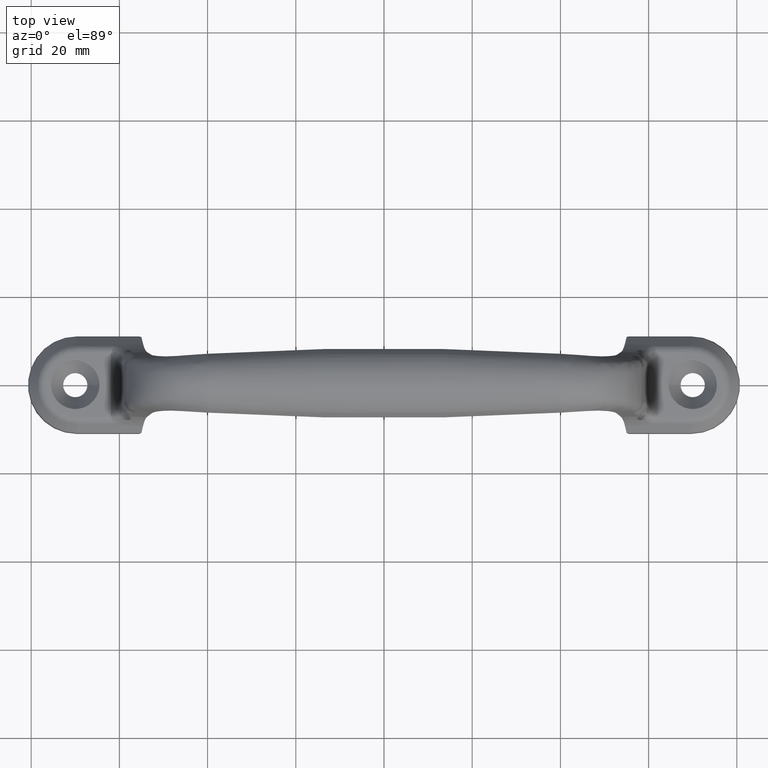
[diagram: clean part render]
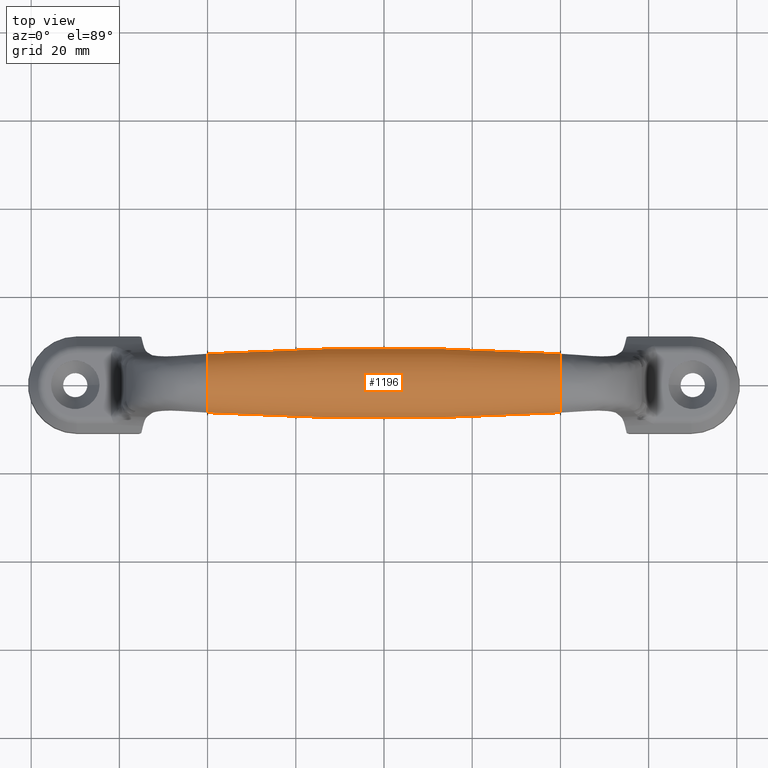
[diagram: same view with one face highlighted and labeled with its STEP entity id]
A machine part, top view. The second image highlights one B-rep face of the part: STEP entity #1196.
In plain terms, the highlighted face is a freeform B-spline surface patch.
Its self-contained STEP definition (entity closure, byte-faithful):
#181=FACE_OUTER_BOUND('',#254,.T.);
#254=EDGE_LOOP('',(#803,#804,#805,#806));
#332=B_SPLINE_CURVE_WITH_KNOTS('',3,(#1501,#1502,#1503,#1504,#1505,#1506),
 .UNSPECIFIED.,.F.,.F.,(4,2,4),(0.,0.500017514202834,1.),.UNSPECIFIED.);
#349=B_SPLINE_CURVE_WITH_KNOTS('',3,(#2258,#2259,#2260,#2261,#2262,#2263),
 .UNSPECIFIED.,.F.,.F.,(4,2,4),(0.,0.500017514202834,1.),.UNSPECIFIED.);
#350=B_SPLINE_CURVE_WITH_KNOTS('',3,(#2504,#2505,#2506,#2507,#2508,#2509,
#2510,#2511,#2512,#2513,#2514,#2515,#2516,#2517,#2518,#2519,#2520,#2521,
#2522,#2523,#2524,#2525,#2526,#2527,#2528,#2529,#2530,#2531,#2532,#2533,
#2534,#2535,#2536,#2537,#2538,#2539,#2540,#2541,#2542,#2543,#2544,#2545,
#2546,#2547,#2548,#2549,#2550,#2551,#2552,#2553,#2554,#2555,#2556,#2557,
#2558,#2559,#2560,#2561,#2562,#2563,#2564,#2565,#2566,#2567,#2568,#2569,
#2570,#2571,#2572,#2573,#2574,#2575,#2576,#2577,#2578,#2579,#2580,#2581,
#2582,#2583,#2584,#2585,#2586,#2587,#2588,#2589,#2590,#2591,#2592,#2593,
#2594),.UNSPECIFIED.,.F.,.F.,(4,3,3,3,3,3,3,3,3,3,3,3,3,3,3,3,3,3,3,3,3,
3,3,3,3,3,3,3,3,3,4),(-1.44370021398789,-1.26466342048277,-1.25451719783154,
-1.2421059356418,-1.17421645538692,-1.15912800481853,-1.15153691434943,
-1.08376949029108,-1.06713364534011,-1.06342626409933,-0.98785778160469,
-0.967176529007807,-0.910069343056486,-0.870912515835616,-0.752957486636548,
-0.721981629907689,-0.691957731062429,-0.573735026135915,-0.535103499457519,
-0.477364212774784,-0.457442208182294,-0.381017529608391,-0.378239689340944,
-0.360193769524304,-0.293751732951284,-0.285212509527465,-0.269746804428457,
-0.202862300105507,-0.189697550767016,-0.17929983933261,-0.000263258753689663),
 .UNSPECIFIED.);
#351=B_SPLINE_CURVE_WITH_KNOTS('',3,(#2595,#2596,#2597,#2598,#2599,#2600,
#2601,#2602,#2603,#2604,#2605,#2606,#2607,#2608,#2609,#2610,#2611,#2612,
#2613,#2614,#2615,#2616,#2617,#2618,#2619,#2620,#2621,#2622,#2623,#2624,
#2625,#2626,#2627,#2628,#2629,#2630,#2631,#2632,#2633,#2634,#2635,#2636,
#2637,#2638,#2639,#2640,#2641,#2642,#2643,#2644,#2645,#2646,#2647,#2648,
#2649,#2650,#2651,#2652,#2653,#2654,#2655,#2656,#2657,#2658,#2659,#2660,
#2661,#2662,#2663,#2664,#2665,#2666,#2667,#2668,#2669,#2670,#2671,#2672,
#2673,#2674,#2675,#2676,#2677,#2678,#2679,#2680,#2681,#2682,#2683,#2684,
#2685),.UNSPECIFIED.,.F.,.F.,(4,3,3,3,3,3,3,3,3,3,3,3,3,3,3,3,3,3,3,3,3,
3,3,3,3,3,3,3,3,3,4),(-1.45244274154689,-1.27233968254572,-1.26188003441184,
-1.24863686578575,-1.18135394634332,-1.16579611570929,-1.15720602615803,
-1.09036821014091,-1.07221479506251,-1.06942040785981,-0.99254048561245,
-0.972499810366414,-0.91441658445537,-0.875554938940432,-0.756628009416818,
-0.726425265331289,-0.695264892774965,-0.576607233459581,-0.5372171583115,
-0.479769798405919,-0.458965352495309,-0.38294672648406,-0.379217261253053,
-0.362482320521668,-0.294311222000496,-0.286674913206958,-0.271496584319263,
-0.203202702541767,-0.190717509408556,-0.180510848116858,-0.000407574921135646),
 .UNSPECIFIED.);
#460=VERTEX_POINT('',#1491);
#462=VERTEX_POINT('',#1500);
#472=VERTEX_POINT('',#2218);
#473=VERTEX_POINT('',#2238);
#588=EDGE_CURVE('',#460,#462,#332,.T.);
#605=EDGE_CURVE('',#472,#473,#349,.T.);
#606=EDGE_CURVE('',#472,#460,#350,.T.);
#607=EDGE_CURVE('',#462,#473,#351,.T.);
#803=ORIENTED_EDGE('',*,*,#606,.F.);
#804=ORIENTED_EDGE('',*,*,#605,.T.);
#805=ORIENTED_EDGE('',*,*,#607,.F.);
#806=ORIENTED_EDGE('',*,*,#588,.F.);
#1169=B_SPLINE_SURFACE_WITH_KNOTS('',3,3,((#2264,#2265,#2266,#2267),(#2268,
#2269,#2270,#2271),(#2272,#2273,#2274,#2275),(#2276,#2277,#2278,#2279),
(#2280,#2281,#2282,#2283),(#2284,#2285,#2286,#2287),(#2288,#2289,#2290,
#2291),(#2292,#2293,#2294,#2295),(#2296,#2297,#2298,#2299),(#2300,#2301,
#2302,#2303),(#2304,#2305,#2306,#2307),(#2308,#2309,#2310,#2311),(#2312,
#2313,#2314,#2315),(#2316,#2317,#2318,#2319),(#2320,#2321,#2322,#2323),
(#2324,#2325,#2326,#2327),(#2328,#2329,#2330,#2331),(#2332,#2333,#2334,
#2335),(#2336,#2337,#2338,#2339),(#2340,#2341,#2342,#2343),(#2344,#2345,
#2346,#2347),(#2348,#2349,#2350,#2351),(#2352,#2353,#2354,#2355),(#2356,
#2357,#2358,#2359),(#2360,#2361,#2362,#2363),(#2364,#2365,#2366,#2367),
(#2368,#2369,#2370,#2371),(#2372,#2373,#2374,#2375),(#2376,#2377,#2378,
#2379),(#2380,#2381,#2382,#2383),(#2384,#2385,#2386,#2387),(#2388,#2389,
#2390,#2391),(#2392,#2393,#2394,#2395),(#2396,#2397,#2398,#2399),(#2400,
#2401,#2402,#2403),(#2404,#2405,#2406,#2407),(#2408,#2409,#2410,#2411),
(#2412,#2413,#2414,#2415),(#2416,#2417,#2418,#2419),(#2420,#2421,#2422,
#2423),(#2424,#2425,#2426,#2427),(#2428,#2429,#2430,#2431),(#2432,#2433,
#2434,#2435),(#2436,#2437,#2438,#2439),(#2440,#2441,#2442,#2443),(#2444,
#2445,#2446,#2447),(#2448,#2449,#2450,#2451),(#2452,#2453,#2454,#2455),
(#2456,#2457,#2458,#2459),(#2460,#2461,#2462,#2463),(#2464,#2465,#2466,
#2467),(#2468,#2469,#2470,#2471),(#2472,#2473,#2474,#2475),(#2476,#2477,
#2478,#2479),(#2480,#2481,#2482,#2483),(#2484,#2485,#2486,#2487),(#2488,
#2489,#2490,#2491),(#2492,#2493,#2494,#2495),(#2496,#2497,#2498,#2499),
(#2500,#2501,#2502,#2503)),.UNSPECIFIED.,.F.,.F.,.F.,(4,2,2,2,2,2,2,2,2,
2,2,2,2,2,1,2,1,2,2,2,2,2,2,2,2,2,2,2,2,2,4),(4,4),(0.,0.124035062879535,
0.13106427369088,0.139662683302559,0.186695898025724,0.197149039407255,
0.202408077872063,0.249356733171912,0.260881895314007,0.263450335333041,
0.315803492996503,0.330131276778045,0.369694616031789,0.396822109947529,
0.478540281822884,0.500000073756667,0.52080035792314,0.602703973108975,
0.629467543584506,0.669468796478413,0.683270580144993,0.736216902668309,
0.738141365151672,0.750643414341421,0.796673853240805,0.802589749596967,
0.81330424948761,0.859641226021579,0.868761644679805,0.875965084633799,
1.),(0.,1.),.UNSPECIFIED.);
#1196=ADVANCED_FACE('',(#181),#1169,.F.);
#1491=CARTESIAN_POINT('',(-40.000000015354,66.7435429460592,26.0890724851359));
#1500=CARTESIAN_POINT('',(40.000000012315,66.7435429464267,26.0890724852704));
#1501=CARTESIAN_POINT('Ctrl Pts',(-40.,66.7435429479518,26.0890724856966));
#1502=CARTESIAN_POINT('Ctrl Pts',(-26.6671337340873,67.5546155565217,26.1008781295715));
#1503=CARTESIAN_POINT('Ctrl Pts',(-13.3338003953995,67.9601376555159,26.1067807447445));
#1504=CARTESIAN_POINT('Ctrl Pts',(13.3328663367058,67.9600808363431,26.1067799177155));
#1505=CARTESIAN_POINT('Ctrl Pts',(26.6661996646847,67.5545587373466,26.1008773025504));
#1506=CARTESIAN_POINT('Ctrl Pts',(40.,66.7435429479448,26.0890724857202));
#2218=CARTESIAN_POINT('',(-40.0000000328284,53.391963930679,26.0888706088555));
#2238=CARTESIAN_POINT('',(40.0000000001041,53.3919639267432,26.0888706103815));
#2258=CARTESIAN_POINT('Ctrl Pts',(-40.,53.3919639266323,26.0888706100543));
#2259=CARTESIAN_POINT('Ctrl Pts',(-26.6671337375446,52.5809279262415,26.1008022521448));
#2260=CARTESIAN_POINT('Ctrl Pts',(-13.3338004005855,52.1754241307033,26.1067678642444));
#2261=CARTESIAN_POINT('Ctrl Pts',(13.3328663315201,52.1754809473419,26.1067670284913));
#2262=CARTESIAN_POINT('Ctrl Pts',(26.6661996612276,52.5809847429128,26.100801416502));
#2263=CARTESIAN_POINT('Ctrl Pts',(40.,53.3919639267303,26.0888706103853));
#2264=CARTESIAN_POINT('Ctrl Pts',(-40.,53.3919639266323,26.0888706100543));
#2265=CARTESIAN_POINT('Ctrl Pts',(-13.3352015004681,51.7699487424566,26.1127330583718));
#2266=CARTESIAN_POINT('Ctrl Pts',(13.3314651661985,51.7699487424893,26.1127330584821));
#2267=CARTESIAN_POINT('Ctrl Pts',(40.,53.3919639267303,26.0888706103853));
#2268=CARTESIAN_POINT('Ctrl Pts',(-40.,53.5901365530062,26.7578272774817));
#2269=CARTESIAN_POINT('Ctrl Pts',(-13.3352007014029,51.9242916196247,27.0558701685212));
#2270=CARTESIAN_POINT('Ctrl Pts',(13.3314659652637,51.9151143968055,27.0248144099122));
#2271=CARTESIAN_POINT('Ctrl Pts',(40.,53.5625519277926,26.6647118996734));
#2272=CARTESIAN_POINT('Ctrl Pts',(-40.0000000000046,53.8897053579553,27.3969271357917));
#2273=CARTESIAN_POINT('Ctrl Pts',(-13.3352155447588,52.3187430052436,27.9275489084005));
#2274=CARTESIAN_POINT('Ctrl Pts',(13.331451121917,52.2965756181008,27.8845376908155));
#2275=CARTESIAN_POINT('Ctrl Pts',(40.0000000000046,53.8231083764506,27.2676880686595));
#2276=CARTESIAN_POINT('Ctrl Pts',(-40.0000000000054,54.2988009439816,28.0100966527495));
#2277=CARTESIAN_POINT('Ctrl Pts',(-13.3352074524078,52.918561903247,28.7004431322443));
#2278=CARTESIAN_POINT('Ctrl Pts',(13.3314592142697,52.8917455555814,28.6597123066333));
#2279=CARTESIAN_POINT('Ctrl Pts',(40.0000000000055,54.2180858385191,27.8877215061967));
#2280=CARTESIAN_POINT('Ctrl Pts',(-40.0000000000054,54.3210230036573,28.0427935253999));
#2281=CARTESIAN_POINT('Ctrl Pts',(-13.3352070054465,52.9511818803045,28.741490259319));
#2282=CARTESIAN_POINT('Ctrl Pts',(13.331459661231,52.9241401626469,28.7009307936513));
#2283=CARTESIAN_POINT('Ctrl Pts',(40.0000000000054,54.2396336584148,27.9209219790026));
#2284=CARTESIAN_POINT('Ctrl Pts',(-40.0000000000054,54.3710467659733,28.1150534022453));
#2285=CARTESIAN_POINT('Ctrl Pts',(-13.3352060048918,53.0246558031089,28.8318507487735));
#2286=CARTESIAN_POINT('Ctrl Pts',(13.3314606617858,52.9971776448862,28.7917573251998));
#2287=CARTESIAN_POINT('Ctrl Pts',(40.0000000000054,54.2883626614199,27.9946003672913));
#2288=CARTESIAN_POINT('Ctrl Pts',(-40.0000000000054,54.3989859650305,28.154520764194));
#2289=CARTESIAN_POINT('Ctrl Pts',(-13.3352054497683,53.0657299152622,28.8809784021045));
#2290=CARTESIAN_POINT('Ctrl Pts',(13.3314612169092,53.0380718690124,28.8412243217704));
#2291=CARTESIAN_POINT('Ctrl Pts',(40.0000000000054,54.3157263912814,28.0350476626259));
#2292=CARTESIAN_POINT('Ctrl Pts',(-40.0000000000055,54.5823957728055,28.4079433161836));
#2293=CARTESIAN_POINT('Ctrl Pts',(-13.3352019451879,53.3352869582476,29.1949737144718));
#2294=CARTESIAN_POINT('Ctrl Pts',(13.3314647214899,53.3066662054689,29.1576885749164));
#2295=CARTESIAN_POINT('Ctrl Pts',(40.0000000000055,54.4964248354426,28.2960580309727));
#2296=CARTESIAN_POINT('Ctrl Pts',(-40.000000000006,54.74969858272,28.6132566722467));
#2297=CARTESIAN_POINT('Ctrl Pts',(-13.3351993848986,53.5812393648197,29.4430824145129));
#2298=CARTESIAN_POINT('Ctrl Pts',(13.33146728178,53.5534360951528,29.4099612253752));
#2299=CARTESIAN_POINT('Ctrl Pts',(40.000000000006,54.6658351269323,28.513437637029));
#2300=CARTESIAN_POINT('Ctrl Pts',(-40.0000000000061,54.9676678980501,28.8517693615373));
#2301=CARTESIAN_POINT('Ctrl Pts',(-13.3352003621418,53.8949504306208,29.727252324361));
#2302=CARTESIAN_POINT('Ctrl Pts',(13.3314663045372,53.8710767247757,29.7011255136705));
#2303=CARTESIAN_POINT('Ctrl Pts',(40.0000000000061,54.8957732469947,28.7732196425984));
#2304=CARTESIAN_POINT('Ctrl Pts',(-40.0000000000062,55.0078469760107,28.8946378622047));
#2305=CARTESIAN_POINT('Ctrl Pts',(-13.3352005497655,53.9525205804178,29.7781617597435));
#2306=CARTESIAN_POINT('Ctrl Pts',(13.3314661169135,53.9295115324187,29.7534301582059));
#2307=CARTESIAN_POINT('Ctrl Pts',(40.0000000000062,54.9384990992073,28.8201997780889));
#2308=CARTESIAN_POINT('Ctrl Pts',(-40.0000000000062,55.0690374959343,28.9582994803031));
#2309=CARTESIAN_POINT('Ctrl Pts',(-13.3352008340159,54.0397791884929,29.8534647785394));
#2310=CARTESIAN_POINT('Ctrl Pts',(13.3314658326631,54.0182323471983,29.8308884621296));
#2311=CARTESIAN_POINT('Ctrl Pts',(40.0000000000062,55.0040983379772,28.8903638541428));
#2312=CARTESIAN_POINT('Ctrl Pts',(-40.0000000000062,55.0896530862389,28.9794773025163));
#2313=CARTESIAN_POINT('Ctrl Pts',(-13.3352009295335,54.0691132375781,29.8784718373906));
#2314=CARTESIAN_POINT('Ctrl Pts',(13.3314657371455,54.0480933268798,29.8566427991111));
#2315=CARTESIAN_POINT('Ctrl Pts',(40.0000000000062,55.0262870470305,28.9137723599063));
#2316=CARTESIAN_POINT('Ctrl Pts',(-40.0000000000062,55.2956239162873,29.1883988276353));
#2317=CARTESIAN_POINT('Ctrl Pts',(-13.3352018708212,54.361518499982,30.1246886097861));
#2318=CARTESIAN_POINT('Ctrl Pts',(13.3314647958578,54.3460412473758,30.1104159641671));
#2319=CARTESIAN_POINT('Ctrl Pts',(40.0000000000062,55.248877929845,29.1453487366858));
#2320=CARTESIAN_POINT('Ctrl Pts',(-40.0000000000066,55.4914155901646,29.3657255106837));
#2321=CARTESIAN_POINT('Ctrl Pts',(-13.3352026615942,54.6342158603088,30.3299095016457));
#2322=CARTESIAN_POINT('Ctrl Pts',(13.3314640050857,54.6264131882359,30.3238079957878));
#2323=CARTESIAN_POINT('Ctrl Pts',(40.0000000000066,55.4676221788466,29.3471256129636));
#2324=CARTESIAN_POINT('Ctrl Pts',(-40.0000000000068,55.7469429372379,29.57192593966));
#2325=CARTESIAN_POINT('Ctrl Pts',(-13.3352026247685,54.9838422483508,30.5639921510961));
#2326=CARTESIAN_POINT('Ctrl Pts',(13.3314640419117,54.9896032552815,30.5685697187302));
#2327=CARTESIAN_POINT('Ctrl Pts',(40.0000000000068,55.7638098606277,29.5853563857783));
#2328=CARTESIAN_POINT('Ctrl Pts',(-40.0000000000068,55.7978780935506,29.6118632292596));
#2329=CARTESIAN_POINT('Ctrl Pts',(-13.3352026190123,55.0532509406334,30.6090582627305));
#2330=CARTESIAN_POINT('Ctrl Pts',(13.3314640476679,55.0618747434479,30.6157647438777));
#2331=CARTESIAN_POINT('Ctrl Pts',(40.0000000000068,55.8233404799715,29.6316782302917));
#2332=CARTESIAN_POINT('Ctrl Pts',(-40.0000000000068,55.8608056755883,29.6597907011495));
#2333=CARTESIAN_POINT('Ctrl Pts',(-13.3352026136589,55.138695584579,30.6628718628312));
#2334=CARTESIAN_POINT('Ctrl Pts',(13.3314640530214,55.1510865587222,30.6722018236844));
#2335=CARTESIAN_POINT('Ctrl Pts',(40.0000000000068,55.8975528779916,29.6874695501255));
#2336=CARTESIAN_POINT('Ctrl Pts',(-40.0000000000068,55.8722998968697,29.6684883861118));
#2337=CARTESIAN_POINT('Ctrl Pts',(-13.3352026127517,55.1542787807022,30.672620255948));
#2338=CARTESIAN_POINT('Ctrl Pts',(13.3314640539285,55.1673553263127,30.6824229097722));
#2339=CARTESIAN_POINT('Ctrl Pts',(40.0000000000068,55.9111408871524,29.697605569142));
#2340=CARTESIAN_POINT('Ctrl Pts',(-40.0000000000066,56.11863966776,29.8536764715335));
#2341=CARTESIAN_POINT('Ctrl Pts',(-13.3352025947881,55.488367039285,30.8801616751151));
#2342=CARTESIAN_POINT('Ctrl Pts',(13.3314640718918,55.5166697293237,30.9002821222407));
#2343=CARTESIAN_POINT('Ctrl Pts',(40.0000000000066,56.2026374885721,29.9134361934));
#2344=CARTESIAN_POINT('Ctrl Pts',(-40.0000000000058,56.3642462683382,30.0148590149211));
#2345=CARTESIAN_POINT('Ctrl Pts',(-13.3352026055384,55.8153851745325,31.0556832380948));
#2346=CARTESIAN_POINT('Ctrl Pts',(13.3314640611399,55.8639735257057,31.0866348399474));
#2347=CARTESIAN_POINT('Ctrl Pts',(40.0000000000058,56.5069690004811,30.1059893380407));
#2348=CARTESIAN_POINT('Ctrl Pts',(-40.0000000000056,56.6886615754393,30.1997616845533));
#2349=CARTESIAN_POINT('Ctrl Pts',(-13.3352026399704,56.2402522637274,31.2528653768486));
#2350=CARTESIAN_POINT('Ctrl Pts',(13.3314640267075,56.3163637821439,31.2934488709241));
#2351=CARTESIAN_POINT('Ctrl Pts',(40.0000000000056,56.9182105792286,30.3219662850766));
#2352=CARTESIAN_POINT('Ctrl Pts',(-40.0000000000056,56.7590530087051,30.2382905554575));
#2353=CARTESIAN_POINT('Ctrl Pts',(-13.3352026485884,56.3324239613025,31.2939192490506));
#2354=CARTESIAN_POINT('Ctrl Pts',(13.3314640180895,56.4151799624005,31.3366753478328));
#2355=CARTESIAN_POINT('Ctrl Pts',(40.0000000000056,57.0073837681244,30.3663847728066));
#2356=CARTESIAN_POINT('Ctrl Pts',(-40.0000000000055,57.0262601557098,30.3786155195854));
#2357=CARTESIAN_POINT('Ctrl Pts',(-13.3352026846966,56.6819285040251,31.4427272529473));
#2358=CARTESIAN_POINT('Ctrl Pts',(13.3314639819811,56.7881355104694,31.4917353201493));
#2359=CARTESIAN_POINT('Ctrl Pts',(40.0000000000055,57.3460521437885,30.5261574464983));
#2360=CARTESIAN_POINT('Ctrl Pts',(-40.0000000000053,57.2273897975687,30.4723387680696));
#2361=CARTESIAN_POINT('Ctrl Pts',(-13.3352027186918,56.9422291663972,31.5404800430289));
#2362=CARTESIAN_POINT('Ctrl Pts',(13.3314639479855,57.0669509634152,31.5927655735085));
#2363=CARTESIAN_POINT('Ctrl Pts',(40.0000000000053,57.6010174797641,30.6285353673014));
#2364=CARTESIAN_POINT('Ctrl Pts',(-40.0000000000052,57.5736305228519,30.6139780790442));
#2365=CARTESIAN_POINT('Ctrl Pts',(-13.3352027801849,57.3902482659794,31.6865618658369));
#2366=CARTESIAN_POINT('Ctrl Pts',(13.3314638864922,57.5451014158673,31.7400449547405));
#2367=CARTESIAN_POINT('Ctrl Pts',(40.0000000000052,58.03936986612,30.7749930502631));
#2368=CARTESIAN_POINT('Ctrl Pts',(-40.0000000000052,57.7166775450554,30.6670959286636));
#2369=CARTESIAN_POINT('Ctrl Pts',(-13.3352028063661,57.5717309352791,31.7399474950182));
#2370=CARTESIAN_POINT('Ctrl Pts',(13.3314638603109,57.7399101007405,31.7937342017617));
#2371=CARTESIAN_POINT('Ctrl Pts',(40.0000000000052,58.2200612629863,30.8272117167441));
#2372=CARTESIAN_POINT('Ctrl Pts',(-40.0000000000052,58.2961583949892,30.8606494613095));
#2373=CARTESIAN_POINT('Ctrl Pts',(-13.3352029096313,58.3200718888579,31.9354595504532));
#2374=CARTESIAN_POINT('Ctrl Pts',(13.3314637570457,58.5375262245754,31.983214113405));
#2375=CARTESIAN_POINT('Ctrl Pts',(40.0000000000052,58.9529307769382,31.0077614927413));
#2376=CARTESIAN_POINT('Ctrl Pts',(-40.0000000000055,58.8768285398933,30.9963038915875));
#2377=CARTESIAN_POINT('Ctrl Pts',(-13.3352030024254,59.0293148614805,32.0553078535337));
#2378=CARTESIAN_POINT('Ctrl Pts',(13.3314636642522,59.2954829587599,32.0864301847548));
#2379=CARTESIAN_POINT('Ctrl Pts',(40.0000000000055,59.6812738678003,31.0916394377693));
#2380=CARTESIAN_POINT('Ctrl Pts',(-40.0000000000055,59.5263416361631,31.0545034678803));
#2381=CARTESIAN_POINT('Ctrl Pts',(-13.3352030185104,59.7741112884151,32.0885016656264));
#2382=CARTESIAN_POINT('Ctrl Pts',(13.3314636481674,60.0480512539123,32.0939383378282));
#2383=CARTESIAN_POINT('Ctrl Pts',(40.0000000000055,60.3475379089618,31.0699225121082));
#2384=CARTESIAN_POINT('Ctrl Pts',(-40.0000000000056,59.7960573872477,31.0701725593655));
#2385=CARTESIAN_POINT('Ctrl Pts',(-13.3352030169916,60.0789026558769,32.0941620641634));
#2386=CARTESIAN_POINT('Ctrl Pts',(13.3314636496863,60.3525921528836,32.0884190503647));
#2387=CARTESIAN_POINT('Ctrl Pts',(40.0000000000056,60.616556382477,31.0538331424631));
#2388=CARTESIAN_POINT('Ctrl Pts',(-40.0000000000057,60.4607347952798,31.0912161692264));
#2389=CARTESIAN_POINT('Ctrl Pts',(-13.335202973782,60.8285041848771,32.0875673618631));
#2390=CARTESIAN_POINT('Ctrl Pts',(13.3314636928961,61.0934530722728,32.0563718507221));
#2391=CARTESIAN_POINT('Ctrl Pts',(40.0000000000057,61.2617071365822,30.9955802556378));
#2392=CARTESIAN_POINT('Ctrl Pts',(-40.0000000000081,61.1871188139279,31.0072163700006));
#2393=CARTESIAN_POINT('Ctrl Pts',(-13.3352027790792,61.583325607227,31.9860691367072));
#2394=CARTESIAN_POINT('Ctrl Pts',(13.3314638876036,61.799158008381,31.9385527422188));
#2395=CARTESIAN_POINT('Ctrl Pts',(40.0000000000081,61.8388384851897,30.8608345376371));
#2396=CARTESIAN_POINT('Ctrl Pts',(-40.0000000000089,61.9197336664201,30.8259859151787));
#2397=CARTESIAN_POINT('Ctrl Pts',(-13.3352025902105,62.3802839940042,31.7979270815696));
#2398=CARTESIAN_POINT('Ctrl Pts',(13.331464076474,62.5462643725809,31.7448103840745));
#2399=CARTESIAN_POINT('Ctrl Pts',(40.0000000000089,62.4167080039818,30.6678259036278));
#2400=CARTESIAN_POINT('Ctrl Pts',(-40.0000000000091,62.0982677224201,30.7743007128354));
#2401=CARTESIAN_POINT('Ctrl Pts',(-13.3352025450735,62.5725897162599,31.7453010594672));
#2402=CARTESIAN_POINT('Ctrl Pts',(13.3314641216111,62.7253346516886,31.6925730625024));
#2403=CARTESIAN_POINT('Ctrl Pts',(40.0000000000091,62.5577031341314,30.6155486075655));
#2404=CARTESIAN_POINT('Ctrl Pts',(-40.0000000000095,62.5378186379028,30.6274466212207));
#2405=CARTESIAN_POINT('Ctrl Pts',(-13.3352024454262,63.0517632875469,31.5988833560661));
#2406=CARTESIAN_POINT('Ctrl Pts',(13.3314642212595,63.1739898938462,31.5476059314066));
#2407=CARTESIAN_POINT('Ctrl Pts',(40.0000000000095,62.9040887728557,30.4742382155063));
#2408=CARTESIAN_POINT('Ctrl Pts',(-40.0000000000103,62.7959642223478,30.5235676715103));
#2409=CARTESIAN_POINT('Ctrl Pts',(-13.3352023973224,63.3339136893002,31.4971900096654));
#2410=CARTESIAN_POINT('Ctrl Pts',(13.3314642693648,63.437277270258,31.4494053436529));
#2411=CARTESIAN_POINT('Ctrl Pts',(40.0000000000103,63.1072763960459,30.379675035936));
#2412=CARTESIAN_POINT('Ctrl Pts',(-40.0000000000106,63.1344192991548,30.3632769916072));
#2413=CARTESIAN_POINT('Ctrl Pts',(-13.3352023653411,63.7065645152664,31.3427731143952));
#2414=CARTESIAN_POINT('Ctrl Pts',(13.3314643013469,63.7862937664018,31.301544809581));
#2415=CARTESIAN_POINT('Ctrl Pts',(40.0000000000106,63.373768395033,30.2397296670883));
#2416=CARTESIAN_POINT('Ctrl Pts',(-40.0000000000107,63.2204309452924,30.3203534767426));
#2417=CARTESIAN_POINT('Ctrl Pts',(-13.3352023600331,63.8018669056229,31.3012859984496));
#2418=CARTESIAN_POINT('Ctrl Pts',(13.3314643066548,63.8751364250597,31.2622281873145));
#2419=CARTESIAN_POINT('Ctrl Pts',(40.0000000000107,63.4415293624676,30.2026991330197));
#2420=CARTESIAN_POINT('Ctrl Pts',(-40.0000000000113,63.6327758283242,30.1038022525409));
#2421=CARTESIAN_POINT('Ctrl Pts',(-13.3352023508979,64.255268290298,31.0953637471056));
#2422=CARTESIAN_POINT('Ctrl Pts',(13.3314643157914,64.3007802127134,31.0662438640202));
#2423=CARTESIAN_POINT('Ctrl Pts',(40.0000000000113,63.7661804046834,30.0182280151452));
#2424=CARTESIAN_POINT('Ctrl Pts',(-40.0000000000137,63.940548547102,29.9085935856205));
#2425=CARTESIAN_POINT('Ctrl Pts',(-13.335202393968,64.6070016310404,30.9074193470149));
#2426=CARTESIAN_POINT('Ctrl Pts',(13.3314642727259,64.6319279059082,30.8895377971256));
#2427=CARTESIAN_POINT('Ctrl Pts',(40.0000000000137,64.0144441688385,29.8555460825848));
#2428=CARTESIAN_POINT('Ctrl Pts',(-40.0000000000142,64.2311950151551,29.6925572577112));
#2429=CARTESIAN_POINT('Ctrl Pts',(-13.3352025213349,64.9562894441161,30.6900645587408));
#2430=CARTESIAN_POINT('Ctrl Pts',(13.33146414536,64.9661264670635,30.6826811814087));
#2431=CARTESIAN_POINT('Ctrl Pts',(40.0000000000142,64.2603253758254,29.6707006135387));
#2432=CARTESIAN_POINT('Ctrl Pts',(-40.0000000000142,64.241366325677,29.6849552846069));
#2433=CARTESIAN_POINT('Ctrl Pts',(-13.3352025259075,64.96849614304,30.6824264682583));
#2434=CARTESIAN_POINT('Ctrl Pts',(13.3314641407875,64.9778217350921,30.6754040195154));
#2435=CARTESIAN_POINT('Ctrl Pts',(40.0000000000142,64.2689345193435,29.6641966551149));
#2436=CARTESIAN_POINT('Ctrl Pts',(-40.0000000000141,64.3173367865112,29.627841537307));
#2437=CARTESIAN_POINT('Ctrl Pts',(-13.3352025609862,65.0599865259298,30.6248829271562));
#2438=CARTESIAN_POINT('Ctrl Pts',(13.3314641057085,65.0654612192018,30.620595913324));
#2439=CARTESIAN_POINT('Ctrl Pts',(40.0000000000141,64.3333623737363,29.6152863515117));
#2440=CARTESIAN_POINT('Ctrl Pts',(-40.0000000000139,64.3817976414622,29.5775360128102));
#2441=CARTESIAN_POINT('Ctrl Pts',(-13.3352025958964,65.1384791474552,30.5737836085311));
#2442=CARTESIAN_POINT('Ctrl Pts',(13.3314640707981,65.1408740763152,30.5718465610884));
#2443=CARTESIAN_POINT('Ctrl Pts',(40.0000000000139,64.388582378438,29.5720248810801));
#2444=CARTESIAN_POINT('Ctrl Pts',(-40.0000000000129,64.6771895294789,29.3386107743754));
#2445=CARTESIAN_POINT('Ctrl Pts',(-13.3352027822782,65.502170498556,30.3287736803564));
#2446=CARTESIAN_POINT('Ctrl Pts',(13.3314638844142,65.4912179807935,30.3376793067137));
#2447=CARTESIAN_POINT('Ctrl Pts',(40.0000000000129,64.643959435347,29.3656205501717));
#2448=CARTESIAN_POINT('Ctrl Pts',(-40.0000000000096,64.8910018703791,29.1408657204519));
#2449=CARTESIAN_POINT('Ctrl Pts',(-13.3352022499128,65.7773890058886,30.1198565046595));
#2450=CARTESIAN_POINT('Ctrl Pts',(13.3314644167731,65.7590777856035,30.1368404423112));
#2451=CARTESIAN_POINT('Ctrl Pts',(40.0000000000096,64.8357660029892,29.1920455947966));
#2452=CARTESIAN_POINT('Ctrl Pts',(-40.0000000000089,65.1119931156271,28.910948449075));
#2453=CARTESIAN_POINT('Ctrl Pts',(-13.3352012133017,66.0745101459722,29.8679581310348));
#2454=CARTESIAN_POINT('Ctrl Pts',(13.3314654533827,66.0508712342686,29.892484115051));
#2455=CARTESIAN_POINT('Ctrl Pts',(40.0000000000089,65.0407813561301,28.9847418543393));
#2456=CARTESIAN_POINT('Ctrl Pts',(-40.0000000000089,65.1368632955321,28.8846657143189));
#2457=CARTESIAN_POINT('Ctrl Pts',(-13.3352010888686,66.1081545909922,29.8390289796941));
#2458=CARTESIAN_POINT('Ctrl Pts',(13.3314655778159,66.0839498750545,29.8643946286648));
#2459=CARTESIAN_POINT('Ctrl Pts',(40.0000000000089,65.0639621202155,28.9609658153701));
#2460=CARTESIAN_POINT('Ctrl Pts',(-40.0000000000088,65.2059462795518,28.8105247111759));
#2461=CARTESIAN_POINT('Ctrl Pts',(-13.3352007228843,66.202151968653,29.7570871181678));
#2462=CARTESIAN_POINT('Ctrl Pts',(13.3314659438,66.1764887213893,29.7847206747578));
#2463=CARTESIAN_POINT('Ctrl Pts',(40.0000000000088,65.1286485439547,28.8936657242846));
#2464=CARTESIAN_POINT('Ctrl Pts',(-40.0000000000088,65.2494864158594,28.7624572702244));
#2465=CARTESIAN_POINT('Ctrl Pts',(-13.3352004682047,66.2620892381243,29.7034825074041));
#2466=CARTESIAN_POINT('Ctrl Pts',(13.3314661984795,66.235603574265,29.7325312774302));
#2467=CARTESIAN_POINT('Ctrl Pts',(40.0000000000088,65.1697678589101,28.8497673075736));
#2468=CARTESIAN_POINT('Ctrl Pts',(-40.0000000000083,65.4761688776049,28.505181042325));
#2469=CARTESIAN_POINT('Ctrl Pts',(-13.335199031208,66.5774652492973,29.4144711924921));
#2470=CARTESIAN_POINT('Ctrl Pts',(13.3314676354752,66.547447692525,29.4503327200876));
#2471=CARTESIAN_POINT('Ctrl Pts',(40.0000000000083,65.3856747424858,28.6132267834702));
#2472=CARTESIAN_POINT('Ctrl Pts',(-40.0000000000069,65.6420083549205,28.2919084736208));
#2473=CARTESIAN_POINT('Ctrl Pts',(-13.3352047386997,66.8208965936718,29.1660525695176));
#2474=CARTESIAN_POINT('Ctrl Pts',(13.3314619279809,66.7903667363426,29.2058430595976));
#2475=CARTESIAN_POINT('Ctrl Pts',(40.0000000000069,65.5503390600557,28.4112840492754));
#2476=CARTESIAN_POINT('Ctrl Pts',(-40.0000000000065,65.8213863516523,28.0328121467219));
#2477=CARTESIAN_POINT('Ctrl Pts',(-13.335207231903,67.0894245402084,28.8510631328695));
#2478=CARTESIAN_POINT('Ctrl Pts',(13.3314594347767,67.0601434737319,28.8931213153952));
#2479=CARTESIAN_POINT('Ctrl Pts',(40.0000000000065,65.733243942831,28.1592232941396));
#2480=CARTESIAN_POINT('Ctrl Pts',(-40.0000000000065,65.8502532666592,27.9900876258831));
#2481=CARTESIAN_POINT('Ctrl Pts',(-13.3352075015199,67.1328991307563,28.7986290886972));
#2482=CARTESIAN_POINT('Ctrl Pts',(13.3314591651598,67.1038534350112,28.8410168808161));
#2483=CARTESIAN_POINT('Ctrl Pts',(40.0000000000065,65.7628659749857,28.117434602735));
#2484=CARTESIAN_POINT('Ctrl Pts',(-40.0000000000065,65.900816222247,27.9134407307926));
#2485=CARTESIAN_POINT('Ctrl Pts',(-13.3352075894853,67.2092738791123,28.7037742925796));
#2486=CARTESIAN_POINT('Ctrl Pts',(13.3314590771943,67.1807755463453,28.7465757972326));
#2487=CARTESIAN_POINT('Ctrl Pts',(40.0000000000065,65.8150487414152,28.0420572762008));
#2488=CARTESIAN_POINT('Ctrl Pts',(-40.0000000000065,65.9227428175446,27.8795568117644));
#2489=CARTESIAN_POINT('Ctrl Pts',(-13.3352074907729,67.2424997047026,28.6615300683829));
#2490=CARTESIAN_POINT('Ctrl Pts',(13.3314591759068,67.2142706086463,28.7044749979604));
#2491=CARTESIAN_POINT('Ctrl Pts',(40.0000000000065,65.8377845985089,28.0085905339046));
#2492=CARTESIAN_POINT('Ctrl Pts',(-40.0000000000055,66.3153039079708,27.2612597170335));
#2493=CARTESIAN_POINT('Ctrl Pts',(-13.3352024680782,67.8387247665341,27.8851019647193));
#2494=CARTESIAN_POINT('Ctrl Pts',(13.3314641985993,67.8158690511369,27.9297039618435));
#2495=CARTESIAN_POINT('Ctrl Pts',(40.0000000000055,66.2466259363051,27.3952777706087));
#2496=CARTESIAN_POINT('Ctrl Pts',(-40.,66.5739695424899,26.6614209627845));
#2497=CARTESIAN_POINT('Ctrl Pts',(-13.3352000672687,68.2203853495291,27.0250605843004));
#2498=CARTESIAN_POINT('Ctrl Pts',(13.331466599398,68.210955769608,27.0569785892146));
#2499=CARTESIAN_POINT('Ctrl Pts',(40.,66.5456162994502,26.7571195508299));
#2500=CARTESIAN_POINT('Ctrl Pts',(-40.,66.7435429479518,26.0890724856966));
#2501=CARTESIAN_POINT('Ctrl Pts',(-13.3352014935537,68.3656313459212,26.1126829464096));
#2502=CARTESIAN_POINT('Ctrl Pts',(13.331465173113,68.3656313459188,26.1126829464174));
#2503=CARTESIAN_POINT('Ctrl Pts',(40.,66.7435429479448,26.0890724857202));
#2504=CARTESIAN_POINT('Ctrl Pts',(-40.,53.3919639266323,26.0888706100543));
#2505=CARTESIAN_POINT('Ctrl Pts',(-40.,53.5901365530062,26.7578272774817));
#2506=CARTESIAN_POINT('Ctrl Pts',(-40.0000000000046,53.8897053579553,27.3969271357917));
#2507=CARTESIAN_POINT('Ctrl Pts',(-40.0000000000054,54.2768604178932,27.9772112776857));
#2508=CARTESIAN_POINT('Ctrl Pts',(-40.0000000000054,54.2988009439816,28.0100966527495));
#2509=CARTESIAN_POINT('Ctrl Pts',(-40.0000000000054,54.3210230036573,28.0427935253999));
#2510=CARTESIAN_POINT('Ctrl Pts',(-40.0000000000054,54.3435233947199,28.0752955886571));
#2511=CARTESIAN_POINT('Ctrl Pts',(-40.0000000000054,54.3710467659733,28.1150534022453));
#2512=CARTESIAN_POINT('Ctrl Pts',(-40.0000000000054,54.3989859650305,28.154520764194));
#2513=CARTESIAN_POINT('Ctrl Pts',(-40.0000000000055,54.4273337379547,28.1936896889359));
#2514=CARTESIAN_POINT('Ctrl Pts',(-40.0000000000055,54.5823957728055,28.4079433161836));
#2515=CARTESIAN_POINT('Ctrl Pts',(-40.000000000006,54.74969858272,28.6132566722467));
#2516=CARTESIAN_POINT('Ctrl Pts',(-40.0000000000061,54.9280330311987,28.8083989510367));
#2517=CARTESIAN_POINT('Ctrl Pts',(-40.0000000000061,54.9676678980501,28.8517693615373));
#2518=CARTESIAN_POINT('Ctrl Pts',(-40.0000000000062,55.0078469760107,28.8946378622047));
#2519=CARTESIAN_POINT('Ctrl Pts',(-40.0000000000062,55.0485563595734,28.9369912403526));
#2520=CARTESIAN_POINT('Ctrl Pts',(-40.0000000000062,55.0690374959343,28.9582994803031));
#2521=CARTESIAN_POINT('Ctrl Pts',(-40.0000000000062,55.0896530862389,28.9794773025163));
#2522=CARTESIAN_POINT('Ctrl Pts',(-40.0000000000062,55.1104011492109,29.0005225979029));
#2523=CARTESIAN_POINT('Ctrl Pts',(-40.0000000000062,55.2956239162873,29.1883988276353));
#2524=CARTESIAN_POINT('Ctrl Pts',(-40.0000000000066,55.4914155901646,29.3657255106837));
#2525=CARTESIAN_POINT('Ctrl Pts',(-40.0000000000067,55.6965786163231,29.5312839312931));
#2526=CARTESIAN_POINT('Ctrl Pts',(-40.0000000000068,55.7469429372379,29.57192593966));
#2527=CARTESIAN_POINT('Ctrl Pts',(-40.0000000000068,55.7978780935506,29.6118632292596));
#2528=CARTESIAN_POINT('Ctrl Pts',(-40.0000000000068,55.8493376549816,29.6510563239898));
#2529=CARTESIAN_POINT('Ctrl Pts',(-40.0000000000068,55.8608056755883,29.6597907011495));
#2530=CARTESIAN_POINT('Ctrl Pts',(-40.0000000000068,55.8722998968697,29.6684883861118));
#2531=CARTESIAN_POINT('Ctrl Pts',(-40.0000000000068,55.8838201175576,29.6771488131517));
#2532=CARTESIAN_POINT('Ctrl Pts',(-40.0000000000066,56.11863966776,29.8536764715335));
#2533=CARTESIAN_POINT('Ctrl Pts',(-40.0000000000058,56.3642462683382,30.0148590149211));
#2534=CARTESIAN_POINT('Ctrl Pts',(-40.0000000000057,56.6189542156624,30.1600315095781));
#2535=CARTESIAN_POINT('Ctrl Pts',(-40.0000000000056,56.6886615754393,30.1997616845533));
#2536=CARTESIAN_POINT('Ctrl Pts',(-40.0000000000056,56.7590530087051,30.2382905554575));
#2537=CARTESIAN_POINT('Ctrl Pts',(-40.0000000000056,56.8300941377731,30.2755981050489));
#2538=CARTESIAN_POINT('Ctrl Pts',(-40.0000000000055,57.0262601557098,30.3786155195854));
#2539=CARTESIAN_POINT('Ctrl Pts',(-40.0000000000053,57.2273897975687,30.4723387680696));
#2540=CARTESIAN_POINT('Ctrl Pts',(-40.0000000000053,57.4327919289685,30.556364170744));
#2541=CARTESIAN_POINT('Ctrl Pts',(-40.0000000000052,57.5736305228519,30.6139780790442));
#2542=CARTESIAN_POINT('Ctrl Pts',(-40.0000000000052,57.7166775450554,30.6670959286636));
#2543=CARTESIAN_POINT('Ctrl Pts',(-40.0000000000052,57.8611009643677,30.7153350775637));
#2544=CARTESIAN_POINT('Ctrl Pts',(-40.0000000000052,58.2961583949892,30.8606494613095));
#2545=CARTESIAN_POINT('Ctrl Pts',(-40.0000000000054,58.7560560412728,30.968089380066));
#2546=CARTESIAN_POINT('Ctrl Pts',(-40.0000000000055,59.2591376868079,31.0269432011877));
#2547=CARTESIAN_POINT('Ctrl Pts',(-40.0000000000055,59.3912506207017,31.0423986467367));
#2548=CARTESIAN_POINT('Ctrl Pts',(-40.0000000000055,59.5263416361631,31.0545034678803));
#2549=CARTESIAN_POINT('Ctrl Pts',(-40.0000000000056,59.6633040942005,31.0624602789912));
#2550=CARTESIAN_POINT('Ctrl Pts',(-40.0000000000056,59.7960573872477,31.0701725593655));
#2551=CARTESIAN_POINT('Ctrl Pts',(-40.0000000000056,59.9306723244924,31.0744344527089));
#2552=CARTESIAN_POINT('Ctrl Pts',(-40.0000000000057,60.06781828632,31.0743877728217));
#2553=CARTESIAN_POINT('Ctrl Pts',(-40.0000000000062,60.6078469701549,31.0742039651636));
#2554=CARTESIAN_POINT('Ctrl Pts',(-40.0000000000081,61.1871188139279,31.0072163700006));
#2555=CARTESIAN_POINT('Ctrl Pts',(-40.0000000000087,61.7392984309186,30.870621046018));
#2556=CARTESIAN_POINT('Ctrl Pts',(-40.0000000000089,61.9197336664201,30.8259859151787));
#2557=CARTESIAN_POINT('Ctrl Pts',(-40.0000000000091,62.0982677224201,30.7743007128354));
#2558=CARTESIAN_POINT('Ctrl Pts',(-40.0000000000092,62.2744675730362,30.7154322903309));
#2559=CARTESIAN_POINT('Ctrl Pts',(-40.0000000000095,62.5378186379028,30.6274466212207));
#2560=CARTESIAN_POINT('Ctrl Pts',(-40.0000000000103,62.7959642223478,30.5235676715103));
#2561=CARTESIAN_POINT('Ctrl Pts',(-40.0000000000105,63.0475973640082,30.4043954382455));
#2562=CARTESIAN_POINT('Ctrl Pts',(-40.0000000000106,63.1344192991548,30.3632769916072));
#2563=CARTESIAN_POINT('Ctrl Pts',(-40.0000000000107,63.2204309452924,30.3203534767426));
#2564=CARTESIAN_POINT('Ctrl Pts',(-40.0000000000108,63.3056932125908,30.2755762790096));
#2565=CARTESIAN_POINT('Ctrl Pts',(-40.0000000000113,63.6327758283242,30.1038022525409));
#2566=CARTESIAN_POINT('Ctrl Pts',(-40.0000000000137,63.940548547102,29.9085935856205));
#2567=CARTESIAN_POINT('Ctrl Pts',(-40.0000000000141,64.2210012804815,29.7001342188947));
#2568=CARTESIAN_POINT('Ctrl Pts',(-40.0000000000142,64.2311950151551,29.6925572577112));
#2569=CARTESIAN_POINT('Ctrl Pts',(-40.0000000000142,64.241366325677,29.6849552846069));
#2570=CARTESIAN_POINT('Ctrl Pts',(-40.0000000000141,64.2515006051919,29.6773364460094));
#2571=CARTESIAN_POINT('Ctrl Pts',(-40.0000000000141,64.3173367865112,29.627841537307));
#2572=CARTESIAN_POINT('Ctrl Pts',(-40.0000000000139,64.3817976414622,29.5775360128102));
#2573=CARTESIAN_POINT('Ctrl Pts',(-40.0000000000137,64.4448908745504,29.52650358311));
#2574=CARTESIAN_POINT('Ctrl Pts',(-40.0000000000129,64.6771895294789,29.3386107743754));
#2575=CARTESIAN_POINT('Ctrl Pts',(-40.0000000000096,64.8910018703791,29.1408657204519));
#2576=CARTESIAN_POINT('Ctrl Pts',(-40.000000000009,65.0868255788591,28.9371325242608));
#2577=CARTESIAN_POINT('Ctrl Pts',(-40.0000000000089,65.1119931156271,28.910948449075));
#2578=CARTESIAN_POINT('Ctrl Pts',(-40.0000000000089,65.1368632955321,28.8846657143189));
#2579=CARTESIAN_POINT('Ctrl Pts',(-40.0000000000089,65.1614380421208,28.8582916890806));
#2580=CARTESIAN_POINT('Ctrl Pts',(-40.0000000000088,65.2059462795518,28.8105247111759));
#2581=CARTESIAN_POINT('Ctrl Pts',(-40.0000000000088,65.2494864158594,28.7624572702244));
#2582=CARTESIAN_POINT('Ctrl Pts',(-40.0000000000087,65.292058306436,28.714139745623));
#2583=CARTESIAN_POINT('Ctrl Pts',(-40.0000000000083,65.4761688776049,28.505181042325));
#2584=CARTESIAN_POINT('Ctrl Pts',(-40.0000000000069,65.6420083549205,28.2919084736208));
#2585=CARTESIAN_POINT('Ctrl Pts',(-40.0000000000066,65.7918861844952,28.0754226401635));
#2586=CARTESIAN_POINT('Ctrl Pts',(-40.0000000000065,65.8213863516523,28.0328121467219));
#2587=CARTESIAN_POINT('Ctrl Pts',(-40.0000000000065,65.8502532666592,27.9900876258831));
#2588=CARTESIAN_POINT('Ctrl Pts',(-40.0000000000065,65.8785036536855,27.9472636962789));
#2589=CARTESIAN_POINT('Ctrl Pts',(-40.0000000000065,65.900816222247,27.9134407307926));
#2590=CARTESIAN_POINT('Ctrl Pts',(-40.0000000000065,65.9227428175446,27.8795568117644));
#2591=CARTESIAN_POINT('Ctrl Pts',(-40.0000000000064,65.9442897977415,27.8456195836975));
#2592=CARTESIAN_POINT('Ctrl Pts',(-40.0000000000055,66.3153039079708,27.2612597170335));
#2593=CARTESIAN_POINT('Ctrl Pts',(-40.,66.5739695424899,26.6614209627845));
#2594=CARTESIAN_POINT('Ctrl Pts',(-40.,66.7435429479518,26.0890724856966));
#2595=CARTESIAN_POINT('Ctrl Pts',(40.,66.7435429479448,26.0890724857202));
#2596=CARTESIAN_POINT('Ctrl Pts',(40.,66.5456162994502,26.7571195508299));
#2597=CARTESIAN_POINT('Ctrl Pts',(40.0000000000055,66.2466259363051,27.3952777706087));
#2598=CARTESIAN_POINT('Ctrl Pts',(40.0000000000064,65.8602251725342,27.974926886927));
#2599=CARTESIAN_POINT('Ctrl Pts',(40.0000000000065,65.8377845985089,28.0085905339046));
#2600=CARTESIAN_POINT('Ctrl Pts',(40.0000000000065,65.8150487414152,28.0420572762008));
#2601=CARTESIAN_POINT('Ctrl Pts',(40.0000000000065,65.7920213779996,28.0753200027706));
#2602=CARTESIAN_POINT('Ctrl Pts',(40.0000000000065,65.7628659749857,28.117434602735));
#2603=CARTESIAN_POINT('Ctrl Pts',(40.0000000000065,65.733243942831,28.1592232941396));
#2604=CARTESIAN_POINT('Ctrl Pts',(40.0000000000066,65.7031637506445,28.2006767307134));
#2605=CARTESIAN_POINT('Ctrl Pts',(40.0000000000069,65.5503390600557,28.4112840492754));
#2606=CARTESIAN_POINT('Ctrl Pts',(40.0000000000083,65.3856747424858,28.6132267834702));
#2607=CARTESIAN_POINT('Ctrl Pts',(40.0000000000087,65.2103160519707,28.8053440326915));
#2608=CARTESIAN_POINT('Ctrl Pts',(40.0000000000088,65.1697678589101,28.8497673075736));
#2609=CARTESIAN_POINT('Ctrl Pts',(40.0000000000088,65.1286485439547,28.8936657242846));
#2610=CARTESIAN_POINT('Ctrl Pts',(40.0000000000089,65.0869728875365,28.9370252935861));
#2611=CARTESIAN_POINT('Ctrl Pts',(40.0000000000089,65.0639621202155,28.9609658153701));
#2612=CARTESIAN_POINT('Ctrl Pts',(40.0000000000089,65.0407813561301,28.9847418543393));
#2613=CARTESIAN_POINT('Ctrl Pts',(40.000000000009,65.0174332301336,29.0083505927952));
#2614=CARTESIAN_POINT('Ctrl Pts',(40.0000000000096,64.8357660029892,29.1920455947966));
#2615=CARTESIAN_POINT('Ctrl Pts',(40.0000000000129,64.643959435347,29.3656205501717));
#2616=CARTESIAN_POINT('Ctrl Pts',(40.0000000000137,64.4431287787644,29.5279386448336));
#2617=CARTESIAN_POINT('Ctrl Pts',(40.0000000000139,64.388582378438,29.5720248810801));
#2618=CARTESIAN_POINT('Ctrl Pts',(40.0000000000141,64.3333623737363,29.6152863515117));
#2619=CARTESIAN_POINT('Ctrl Pts',(40.0000000000141,64.2775290425014,29.657672136474));
#2620=CARTESIAN_POINT('Ctrl Pts',(40.0000000000142,64.2689345193435,29.6641966551149));
#2621=CARTESIAN_POINT('Ctrl Pts',(40.0000000000142,64.2603253758254,29.6707006135387));
#2622=CARTESIAN_POINT('Ctrl Pts',(40.0000000000141,64.2517016763803,29.677183629416));
#2623=CARTESIAN_POINT('Ctrl Pts',(40.0000000000136,64.0144441688385,29.8555460825848));
#2624=CARTESIAN_POINT('Ctrl Pts',(40.0000000000113,63.7661804046834,30.0182280151452));
#2625=CARTESIAN_POINT('Ctrl Pts',(40.0000000000108,63.5086588093922,30.1645552723626));
#2626=CARTESIAN_POINT('Ctrl Pts',(40.0000000000107,63.4415293624676,30.2026991330197));
#2627=CARTESIAN_POINT('Ctrl Pts',(40.0000000000106,63.373768395033,30.2397296670883));
#2628=CARTESIAN_POINT('Ctrl Pts',(40.0000000000105,63.305406734539,30.2756290480425));
#2629=CARTESIAN_POINT('Ctrl Pts',(40.0000000000103,63.1072763960459,30.379675035936));
#2630=CARTESIAN_POINT('Ctrl Pts',(40.0000000000095,62.9040887728557,30.4742382155063));
#2631=CARTESIAN_POINT('Ctrl Pts',(40.0000000000092,62.6965564401967,30.5589024510127));
#2632=CARTESIAN_POINT('Ctrl Pts',(40.0000000000091,62.5577031341314,30.6155486075655));
#2633=CARTESIAN_POINT('Ctrl Pts',(40.0000000000089,62.4167080039818,30.6678259036278));
#2634=CARTESIAN_POINT('Ctrl Pts',(40.0000000000087,62.2743848960654,30.7153618745583));
#2635=CARTESIAN_POINT('Ctrl Pts',(40.0000000000081,61.8388384851897,30.8608345376371));
#2636=CARTESIAN_POINT('Ctrl Pts',(40.0000000000062,61.3785916573075,30.9682906469442));
#2637=CARTESIAN_POINT('Ctrl Pts',(40.0000000000058,60.8750869615535,31.0271000978467));
#2638=CARTESIAN_POINT('Ctrl Pts',(40.0000000000056,60.7472166504924,31.042035376194));
#2639=CARTESIAN_POINT('Ctrl Pts',(40.0000000000056,60.616556382477,31.0538331424631));
#2640=CARTESIAN_POINT('Ctrl Pts',(40.0000000000056,60.4841462873822,31.0617522825016));
#2641=CARTESIAN_POINT('Ctrl Pts',(40.0000000000055,60.3475379089618,31.0699225121082));
#2642=CARTESIAN_POINT('Ctrl Pts',(40.0000000000055,60.2089628957668,31.0744393749045));
#2643=CARTESIAN_POINT('Ctrl Pts',(40.0000000000055,60.0677024010521,31.0743883025412));
#2644=CARTESIAN_POINT('Ctrl Pts',(40.0000000000054,59.5297871490352,31.0741938206852));
#2645=CARTESIAN_POINT('Ctrl Pts',(40.0000000000052,58.9529307769382,31.0077614927413));
#2646=CARTESIAN_POINT('Ctrl Pts',(40.0000000000052,58.4027135820866,30.8722099526798));
#2647=CARTESIAN_POINT('Ctrl Pts',(40.0000000000052,58.2200612629863,30.8272117167441));
#2648=CARTESIAN_POINT('Ctrl Pts',(40.0000000000052,58.03936986612,30.7749930502631));
#2649=CARTESIAN_POINT('Ctrl Pts',(40.0000000000053,57.8610634763408,30.7154191970866));
#2650=CARTESIAN_POINT('Ctrl Pts',(40.0000000000053,57.6010174797641,30.6285353673014));
#2651=CARTESIAN_POINT('Ctrl Pts',(40.0000000000055,57.3460521437885,30.5261574464983));
#2652=CARTESIAN_POINT('Ctrl Pts',(40.0000000000056,57.0974239637422,30.408862795047));
#2653=CARTESIAN_POINT('Ctrl Pts',(40.0000000000056,57.0073837681244,30.3663847728066));
#2654=CARTESIAN_POINT('Ctrl Pts',(40.0000000000056,56.9182105792286,30.3219662850766));
#2655=CARTESIAN_POINT('Ctrl Pts',(40.0000000000057,56.8298467934963,30.2755591568647));
#2656=CARTESIAN_POINT('Ctrl Pts',(40.0000000000058,56.5069690004811,30.1059893380407));
#2657=CARTESIAN_POINT('Ctrl Pts',(40.0000000000066,56.2026374885721,29.9134361934));
#2658=CARTESIAN_POINT('Ctrl Pts',(40.0000000000068,55.9247728929222,29.7076990120874));
#2659=CARTESIAN_POINT('Ctrl Pts',(40.0000000000068,55.9111408871524,29.697605569142));
#2660=CARTESIAN_POINT('Ctrl Pts',(40.0000000000068,55.8975528779916,29.6874695501255));
#2661=CARTESIAN_POINT('Ctrl Pts',(40.0000000000068,55.8840282949358,29.6773020530628));
#2662=CARTESIAN_POINT('Ctrl Pts',(40.0000000000068,55.8233404799715,29.6316782302917));
#2663=CARTESIAN_POINT('Ctrl Pts',(40.0000000000068,55.7638098606277,29.5853563857783));
#2664=CARTESIAN_POINT('Ctrl Pts',(40.0000000000067,55.7054314067084,29.5384012115817));
#2665=CARTESIAN_POINT('Ctrl Pts',(40.0000000000066,55.4676221788466,29.3471256129636));
#2666=CARTESIAN_POINT('Ctrl Pts',(40.0000000000062,55.248877929845,29.1453487366858));
#2667=CARTESIAN_POINT('Ctrl Pts',(40.0000000000062,55.0487092980481,28.9370997468335));
#2668=CARTESIAN_POINT('Ctrl Pts',(40.0000000000062,55.0262870470305,28.9137723599063));
#2669=CARTESIAN_POINT('Ctrl Pts',(40.0000000000062,55.0040983379772,28.8903638541428));
#2670=CARTESIAN_POINT('Ctrl Pts',(40.0000000000062,54.982141555193,28.8668791703864));
#2671=CARTESIAN_POINT('Ctrl Pts',(40.0000000000062,54.9384990992073,28.8201997780889));
#2672=CARTESIAN_POINT('Ctrl Pts',(40.0000000000062,54.8957732469947,28.7732196425984));
#2673=CARTESIAN_POINT('Ctrl Pts',(40.0000000000061,54.8539620096702,28.7259816853404));
#2674=CARTESIAN_POINT('Ctrl Pts',(40.000000000006,54.6658351269323,28.513437637029));
#2675=CARTESIAN_POINT('Ctrl Pts',(40.0000000000056,54.4964248354426,28.2960580309727));
#2676=CARTESIAN_POINT('Ctrl Pts',(40.0000000000055,54.3436550965397,28.075389358321));
#2677=CARTESIAN_POINT('Ctrl Pts',(40.0000000000054,54.3157263912814,28.0350476626259));
#2678=CARTESIAN_POINT('Ctrl Pts',(40.0000000000054,54.2883626614199,27.9946003672913));
#2679=CARTESIAN_POINT('Ctrl Pts',(40.0000000000054,54.2615516744325,27.9540620802786));
#2680=CARTESIAN_POINT('Ctrl Pts',(40.0000000000054,54.2396336584148,27.9209219790026));
#2681=CARTESIAN_POINT('Ctrl Pts',(40.0000000000055,54.2180858385191,27.8877215061967));
#2682=CARTESIAN_POINT('Ctrl Pts',(40.0000000000054,54.1969024926047,27.8544680068273));
#2683=CARTESIAN_POINT('Ctrl Pts',(40.0000000000046,53.8231083764506,27.2676880686595));
#2684=CARTESIAN_POINT('Ctrl Pts',(40.,53.5625519277926,26.6647118996734));
#2685=CARTESIAN_POINT('Ctrl Pts',(40.,53.3919639267303,26.0888706103853));